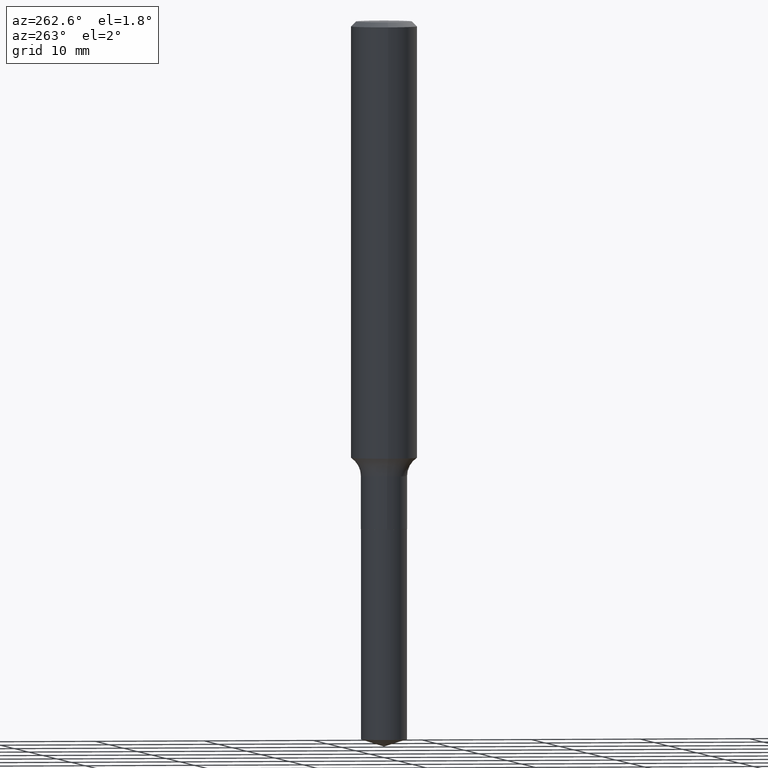
[diagram: clean part render]
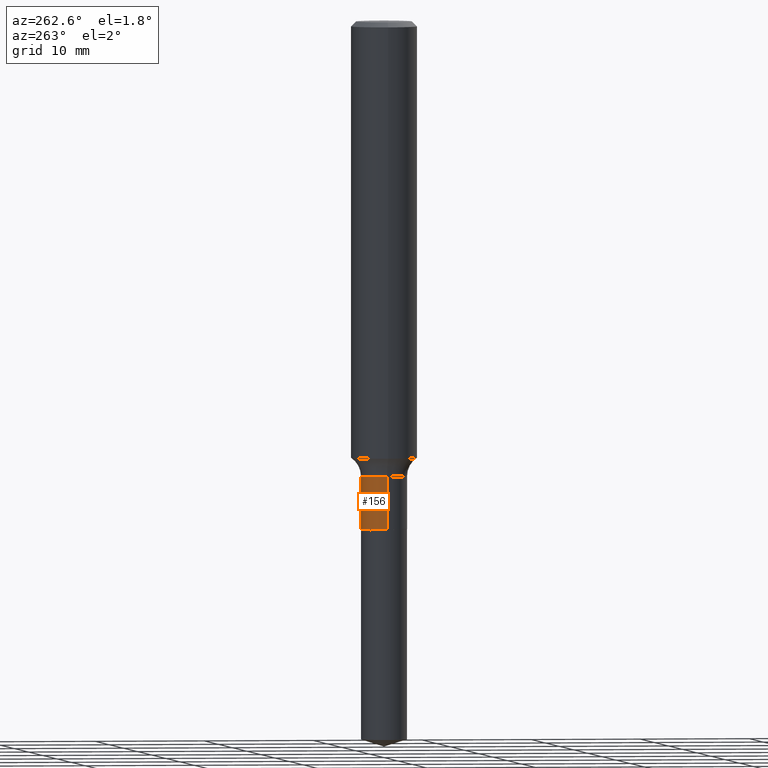
[diagram: same view with one face highlighted and labeled with its STEP entity id]
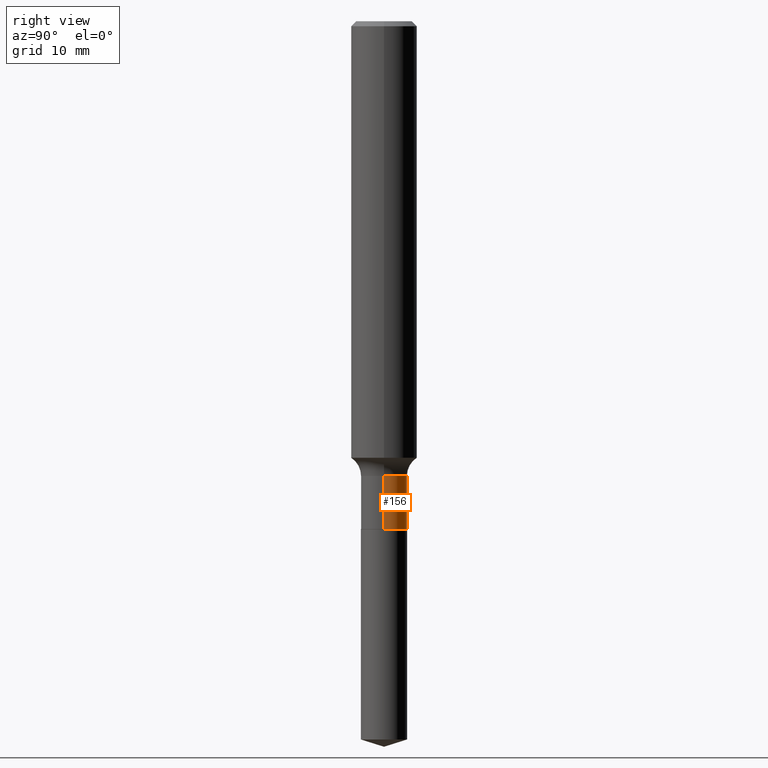
[diagram: same view with one face highlighted and labeled with its STEP entity id]
A machine part, auxiliary view. The second image highlights one B-rep face of the part: STEP entity #156.
A second angle (right view) of the same face is appended — the face is thin or edge-on in the first view.
In plain terms, the highlighted cylindrical surface (edge-blend (fillet) strip) has radius 2.1006 mm, axis along (-0, 0, 1).
Its self-contained STEP definition (entity closure, byte-faithful):
#5 = DIRECTION ( 'NONE',  ( -2.445468806185136597E-29, 3.491481338843145583E-15, 1.000000000000000000 ) ) ;
#13 = DIRECTION ( 'NONE',  ( -2.445468806185136877E-29, 3.491481338843145188E-15, 1.000000000000000000 ) ) ;
#18 = VERTEX_POINT ( 'NONE', #123 ) ;
#22 = CIRCLE ( 'NONE', #46, 0.08269999999999998186 ) ;
#26 = CARTESIAN_POINT ( 'NONE',  ( 4.446840477167052112E-29, -6.348909666552375037E-15, -1.818400000000000016 ) ) ;
#32 = AXIS2_PLACEMENT_3D ( 'NONE', #26, #477, #371 ) ;
#46 = AXIS2_PLACEMENT_3D ( 'NONE', #433, #5, #380 ) ;
#89 = EDGE_CURVE ( 'NONE', #201, #393, #399, .T. ) ;
#106 = DIRECTION ( 'NONE',  ( 1.000000000000000000, -6.982962677686267499E-15, 4.876176775795936353E-29 ) ) ;
#123 = CARTESIAN_POINT ( 'NONE',  ( -0.08269999999999998186, -5.430123819089499970E-15, -1.628699999999999815 ) ) ;
#156 = ADVANCED_FACE ( 'NONE', ( #403 ), #374, .T. ) ;
#201 = VERTEX_POINT ( 'NONE', #257 ) ;
#218 = EDGE_CURVE ( 'NONE', #201, #286, #483, .T. ) ;
#235 = EDGE_CURVE ( 'NONE', #286, #18, #22, .T. ) ;
#252 = ORIENTED_EDGE ( 'NONE', *, *, #218, .F. ) ;
#257 = CARTESIAN_POINT ( 'NONE',  ( 0.08269999999999998186, -6.926400679997028928E-15, -1.818400000000000016 ) ) ;
#281 = VECTOR ( 'NONE', #13, 39.37007874015748143 ) ;
#286 = VERTEX_POINT ( 'NONE', #361 ) ;
#307 = CARTESIAN_POINT ( 'NONE',  ( -0.08269999999999998186, 5.876188424736027248E-16, -4.067959319640806203E-30 ) ) ;
#312 = DIRECTION ( 'NONE',  ( -2.445468806185136877E-29, 3.491481338843145188E-15, 1.000000000000000000 ) ) ;
#319 = ORIENTED_EDGE ( 'NONE', *, *, #235, .F. ) ;
#346 = CARTESIAN_POINT ( 'NONE',  ( 0.08269999999999998186, -5.774910134446541868E-16, 4.032598193583238570E-30 ) ) ;
#361 = CARTESIAN_POINT ( 'NONE',  ( 0.08269999999999998186, -6.264066670018484441E-15, -1.628699999999999815 ) ) ;
#364 = CARTESIAN_POINT ( 'NONE',  ( 0.000000000000000000, 0.000000000000000000, 0.000000000000000000 ) ) ;
#371 = DIRECTION ( 'NONE',  ( 1.000000000000000000, -6.982962677686262766E-15, 0.000000000000000000 ) ) ;
#374 = CYLINDRICAL_SURFACE ( 'NONE', #426, 0.08269999999999998186 ) ;
#378 = CARTESIAN_POINT ( 'NONE',  ( -0.08269999999999998186, -5.430123819089499970E-15, -1.818400000000000016 ) ) ;
#379 = LINE ( 'NONE', #307, #281 ) ;
#380 = DIRECTION ( 'NONE',  ( 1.000000000000000000, -6.982962677686262766E-15, 0.000000000000000000 ) ) ;
#393 = VERTEX_POINT ( 'NONE', #378 ) ;
#394 = EDGE_CURVE ( 'NONE', #393, #18, #379, .T. ) ;
#395 = EDGE_LOOP ( 'NONE', ( #420, #480, #319, #252 ) ) ;
#399 = CIRCLE ( 'NONE', #32, 0.08269999999999998186 ) ;
#403 = FACE_OUTER_BOUND ( 'NONE', #395, .T. ) ;
#412 = DIRECTION ( 'NONE',  ( -2.445468806185136597E-29, 3.491481338843145583E-15, 1.000000000000000000 ) ) ;
#420 = ORIENTED_EDGE ( 'NONE', *, *, #89, .T. ) ;
#426 = AXIS2_PLACEMENT_3D ( 'NONE', #364, #412, #106 ) ;
#427 = VECTOR ( 'NONE', #312, 39.37007874015748143 ) ;
#433 = CARTESIAN_POINT ( 'NONE',  ( 3.982935044633731907E-29, -5.686575656573830550E-15, -1.628699999999999815 ) ) ;
#477 = DIRECTION ( 'NONE',  ( -2.445468806185136597E-29, 3.491481338843145583E-15, 1.000000000000000000 ) ) ;
#480 = ORIENTED_EDGE ( 'NONE', *, *, #394, .T. ) ;
#483 = LINE ( 'NONE', #346, #427 ) ;